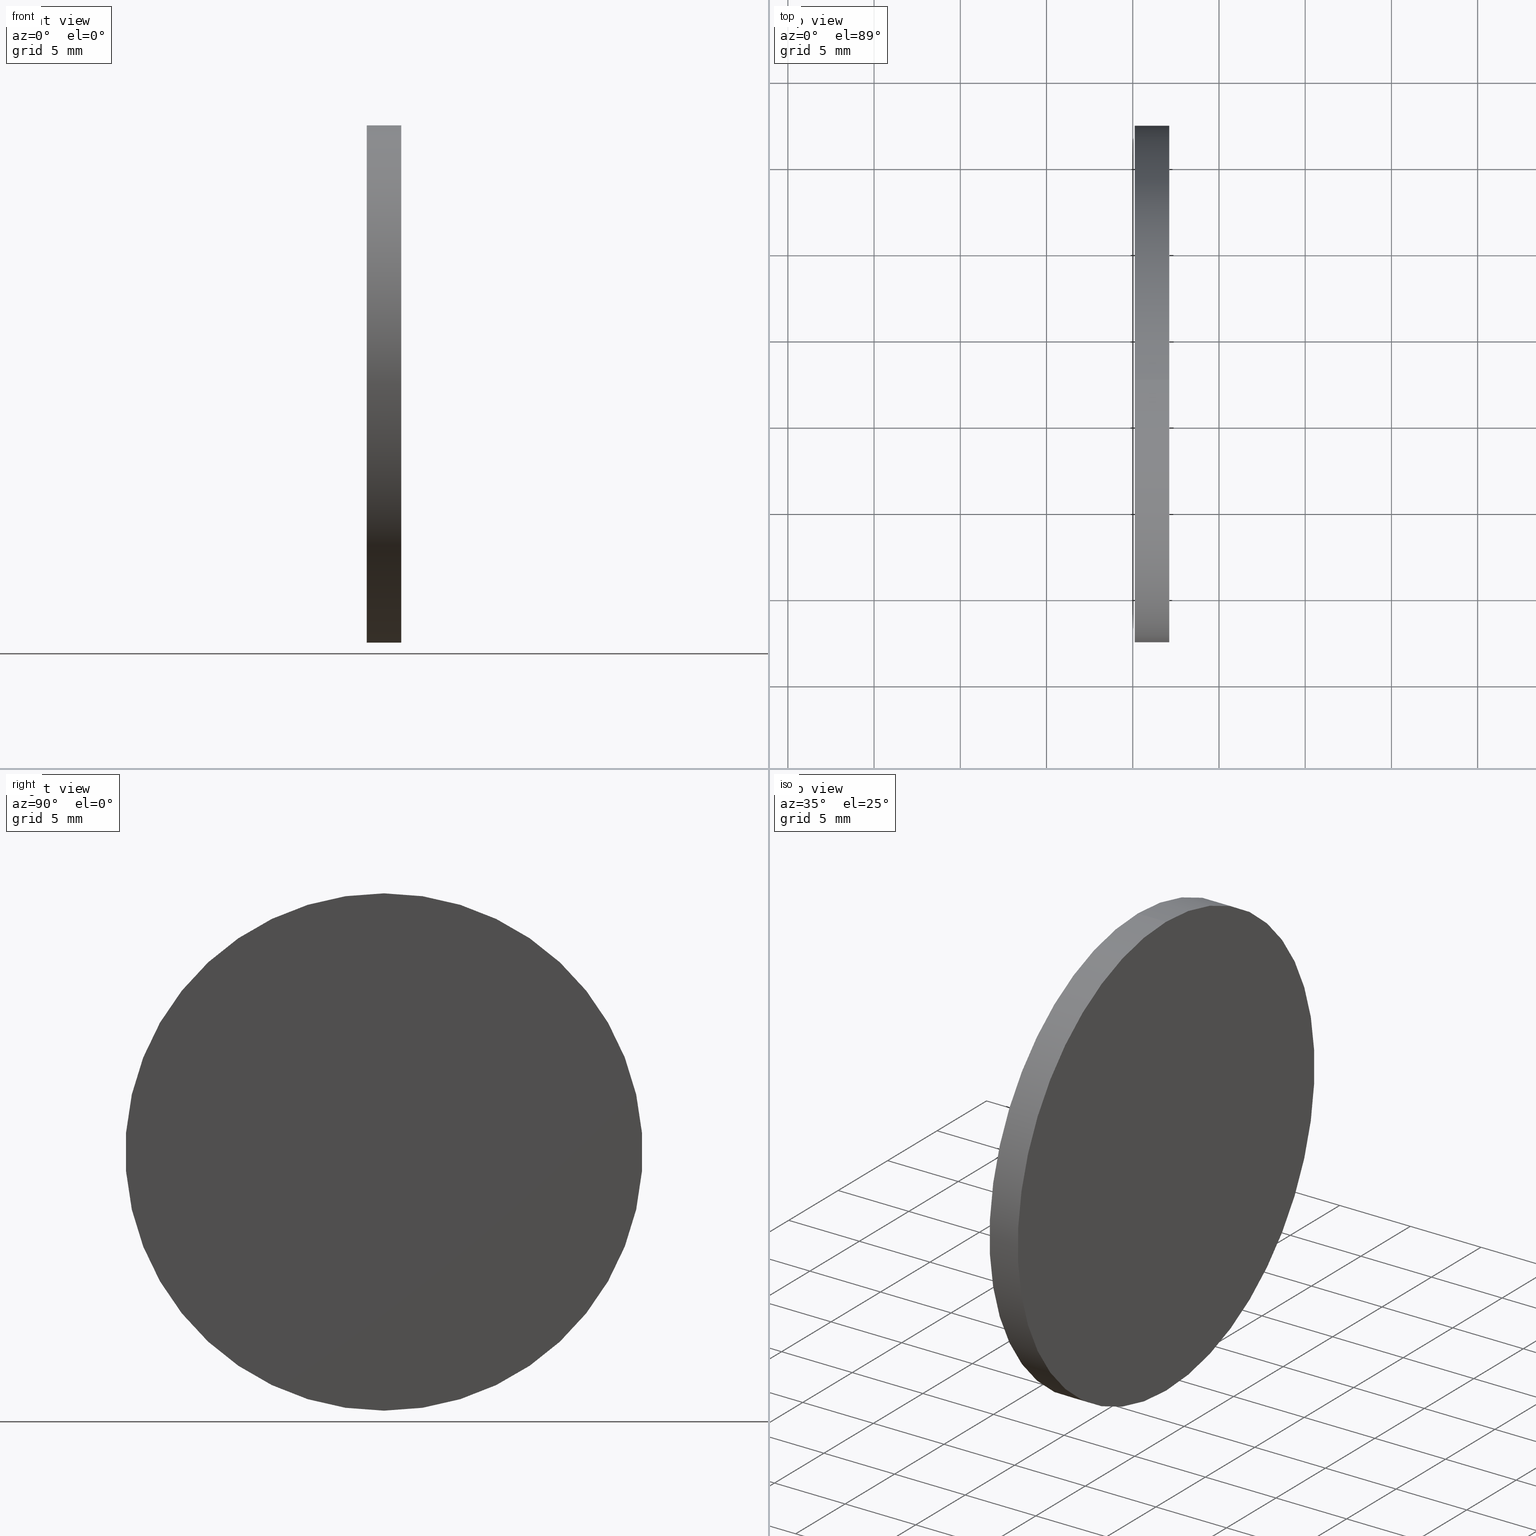
[diagram: canonical four-view strip — front | top / right | iso, engineering-drawing reading convention]
A machine part, canonical four-view strip (front | top / right | iso — engineering-drawing reading convention). The complete STEP part file that produces these views, byte-faithful:
ISO-10303-21;
HEADER;
FILE_DESCRIPTION (( 'STEP AP214' ),
    '1' );
FILE_NAME ('260009.STEP',
    '2019-07-15T03:54:20',
    ( '' ),
    ( '' ),
    'SwSTEP 2.0',
    'SolidWorks 2016',
    '' );
FILE_SCHEMA (( 'AUTOMOTIVE_DESIGN' ));
ENDSEC;

DATA;
#1 = CARTESIAN_POINT ( 'NONE',  ( 0.0000000000000000000, 0.0000000000000000000, 0.0000000000000000000 ) ) ;
#2 = CARTESIAN_POINT ( 'NONE',  ( 260.1163036661670800, 77.29317934901541800, 0.0000000000000000000 ) ) ;
#3 = VERTEX_POINT ( 'NONE', #84 ) ;
#4 = ADVANCED_FACE ( 'NONE', ( #63 ), #40, .T. ) ;
#5 = STYLED_ITEM ( 'NONE', ( #72 ), #107 ) ;
#6 = VECTOR ( 'NONE', #111, 1000.000000000000000 ) ;
#7 = PRESENTATION_LAYER_ASSIGNMENT (  '', '', ( #5 ) ) ;
#8 = PRODUCT_DEFINITION_SHAPE ( 'NONE', 'NONE',  #79 ) ;
#9 = ORIENTED_EDGE ( 'NONE', *, *, #138, .T. ) ;
#10 = MECHANICAL_DESIGN_GEOMETRIC_PRESENTATION_REPRESENTATION (  '', ( #5 ), #132 ) ;
#11 = PLANE ( 'NONE',  #92 ) ;
#12 = SHAPE_DEFINITION_REPRESENTATION ( #8, #136 ) ;
#13 = PLANE ( 'NONE',  #59 ) ;
#14 = CARTESIAN_POINT ( 'NONE',  ( 260.1163036661670800, 77.29317934901541800, -15.00000000000000000 ) ) ;
#15 = COLOUR_RGB ( '',1.000000000000000000, 1.000000000000000000, 1.000000000000000000 ) ;
#16 = PRODUCT_CONTEXT ( 'NONE', #45, 'mechanical' ) ;
#17 = DIRECTION ( 'NONE',  ( 0.0000000000000000000, 0.0000000000000000000, 1.000000000000000000 ) ) ;
#18 = VERTEX_POINT ( 'NONE', #14 ) ;
#19 = EDGE_CURVE ( 'NONE', #3, #18, #116, .T. ) ;
#20 = DIRECTION ( 'NONE',  ( -1.000000000000000000, -0.0000000000000000000, -0.0000000000000000000 ) ) ;
#21 = CARTESIAN_POINT ( 'NONE',  ( 260.1163036661670800, 77.29317934901541800, 0.0000000000000000000 ) ) ;
#22 = DIRECTION ( 'NONE',  ( 1.000000000000000000, 0.0000000000000000000, 0.0000000000000000000 ) ) ;
#23 = FILL_AREA_STYLE_COLOUR ( '', #123 ) ;
#24 = AXIS2_PLACEMENT_3D ( 'NONE', #118, #109, #137 ) ;
#25 = ADVANCED_FACE ( 'NONE', ( #100 ), #13, .F. ) ;
#26 = ORIENTED_EDGE ( 'NONE', *, *, #54, .T. ) ;
#27 = DIRECTION ( 'NONE',  ( 0.0000000000000000000, 0.0000000000000000000, -1.000000000000000000 ) ) ;
#28 = AXIS2_PLACEMENT_3D ( 'NONE', #99, #75, #108 ) ;
#29 = DIRECTION ( 'NONE',  ( 0.0000000000000000000, 0.0000000000000000000, 1.000000000000000000 ) ) ;
#30 = ORIENTED_EDGE ( 'NONE', *, *, #114, .T. ) ;
#31 = CARTESIAN_POINT ( 'NONE',  ( 262.1163036661670300, 92.29317934901541800, 0.0000000000000000000 ) ) ;
#32 =( LENGTH_UNIT ( ) NAMED_UNIT ( * ) SI_UNIT ( .MILLI., .METRE. ) );
#33 = VERTEX_POINT ( 'NONE', #105 ) ;
#34 = CARTESIAN_POINT ( 'NONE',  ( 262.1163036661670300, 77.29317934901541800, 0.0000000000000000000 ) ) ;
#35 =( LENGTH_UNIT ( ) NAMED_UNIT ( * ) SI_UNIT ( .MILLI., .METRE. ) );
#36 = PRODUCT ( '260009', '260009', '', ( #16 ) ) ;
#37 = SURFACE_SIDE_STYLE ('',( #91 ) ) ;
#38 = VECTOR ( 'NONE', #41, 1000.000000000000000 ) ;
#39 = EDGE_CURVE ( 'NONE', #33, #65, #74, .T. ) ;
#40 = CYLINDRICAL_SURFACE ( 'NONE', #51, 15.00000000000000000 ) ;
#41 = DIRECTION ( 'NONE',  ( -1.000000000000000000, -0.0000000000000000000, -0.0000000000000000000 ) ) ;
#42 =( GEOMETRIC_REPRESENTATION_CONTEXT ( 3 ) GLOBAL_UNCERTAINTY_ASSIGNED_CONTEXT ( ( #50 ) ) GLOBAL_UNIT_ASSIGNED_CONTEXT ( ( #35, #61, #78 ) ) REPRESENTATION_CONTEXT ( 'NONE', 'WORKASPACE' ) );
#43 = DIRECTION ( 'NONE',  ( 1.000000000000000000, 0.0000000000000000000, 0.0000000000000000000 ) ) ;
#44 = EDGE_LOOP ( 'NONE', ( #120, #115 ) ) ;
#45 = APPLICATION_CONTEXT ( 'automotive_design' ) ;
#46 = APPLICATION_PROTOCOL_DEFINITION ( 'draft international standard', 'automotive_design', 1998, #122 ) ;
#47 =( GEOMETRIC_REPRESENTATION_CONTEXT ( 3 ) GLOBAL_UNCERTAINTY_ASSIGNED_CONTEXT ( ( #58 ) ) GLOBAL_UNIT_ASSIGNED_CONTEXT ( ( #71, #131, #88 ) ) REPRESENTATION_CONTEXT ( 'NONE', 'WORKASPACE' ) );
#48 = EDGE_LOOP ( 'NONE', ( #139, #95, #117, #135 ) ) ;
#49 = PRODUCT_DEFINITION_FORMATION_WITH_SPECIFIED_SOURCE ( '�κ�', '', #36, .NOT_KNOWN. ) ;
#50 = UNCERTAINTY_MEASURE_WITH_UNIT (LENGTH_MEASURE( 1.000000000000000100E-005 ), #35, 'distance_accuracy_value', 'NONE');
#51 = AXIS2_PLACEMENT_3D ( 'NONE', #119, #76, #29 ) ;
#52 = PRODUCT_DEFINITION_CONTEXT ( 'detailed design', #122, 'design' ) ;
#53 = DIRECTION ( 'NONE',  ( 0.0000000000000000000, 0.0000000000000000000, 1.000000000000000000 ) ) ;
#54 = EDGE_CURVE ( 'NONE', #33, #18, #83, .T. ) ;
#55 = CARTESIAN_POINT ( 'NONE',  ( 254.0008019926160300, 77.29317934901541800, 0.0000000000000000000 ) ) ;
#56 = FILL_AREA_STYLE ('',( #127 ) ) ;
#57 = DIRECTION ( 'NONE',  ( 0.0000000000000000000, 0.0000000000000000000, 1.000000000000000000 ) ) ;
#58 = UNCERTAINTY_MEASURE_WITH_UNIT (LENGTH_MEASURE( 1.000000000000000100E-005 ), #71, 'distance_accuracy_value', 'NONE');
#59 = AXIS2_PLACEMENT_3D ( 'NONE', #21, #43, #27 ) ;
#60 = FACE_OUTER_BOUND ( 'NONE', #44, .T. ) ;
#61 =( NAMED_UNIT ( * ) PLANE_ANGLE_UNIT ( ) SI_UNIT ( $, .RADIAN. ) );
#62 = SURFACE_STYLE_USAGE ( .BOTH. , #37 ) ;
#63 = FACE_OUTER_BOUND ( 'NONE', #48, .T. ) ;
#64 = STYLED_ITEM ( 'NONE', ( #106 ), #136 ) ;
#65 = VERTEX_POINT ( 'NONE', #66 ) ;
#66 = CARTESIAN_POINT ( 'NONE',  ( 262.1163036661670300, 77.29317934901541800, 15.00000000000000000 ) ) ;
#67 = CIRCLE ( 'NONE', #82, 15.00000000000000000 ) ;
#68 = AXIS2_PLACEMENT_3D ( 'NONE', #1, #17, #22 ) ;
#69 = SURFACE_STYLE_FILL_AREA ( #56 ) ;
#70 = DIRECTION ( 'NONE',  ( 0.0000000000000000000, 0.0000000000000000000, 1.000000000000000000 ) ) ;
#71 =( LENGTH_UNIT ( ) NAMED_UNIT ( * ) SI_UNIT ( .MILLI., .METRE. ) );
#72 = PRESENTATION_STYLE_ASSIGNMENT (( #128 ) ) ;
#73 = AXIS2_PLACEMENT_3D ( 'NONE', #55, #20, #53 ) ;
#74 = CIRCLE ( 'NONE', #24, 15.00000000000000000 ) ;
#75 = DIRECTION ( 'NONE',  ( -1.000000000000000000, -0.0000000000000000000, -0.0000000000000000000 ) ) ;
#76 = DIRECTION ( 'NONE',  ( -1.000000000000000000, -0.0000000000000000000, -0.0000000000000000000 ) ) ;
#77 = DIRECTION ( 'NONE',  ( -1.000000000000000000, -0.0000000000000000000, -0.0000000000000000000 ) ) ;
#78 =( NAMED_UNIT ( * ) SI_UNIT ( $, .STERADIAN. ) SOLID_ANGLE_UNIT ( ) );
#79 = PRODUCT_DEFINITION ( 'δ֪', '', #49, #52 ) ;
#80 = UNCERTAINTY_MEASURE_WITH_UNIT (LENGTH_MEASURE( 1.000000000000000100E-005 ), #32, 'distance_accuracy_value', 'NONE');
#81 = FACE_OUTER_BOUND ( 'NONE', #112, .T. ) ;
#82 = AXIS2_PLACEMENT_3D ( 'NONE', #2, #77, #57 ) ;
#83 = LINE ( 'NONE', #87, #38 ) ;
#84 = CARTESIAN_POINT ( 'NONE',  ( 260.1163036661670800, 77.29317934901541800, 15.00000000000000000 ) ) ;
#85 = CYLINDRICAL_SURFACE ( 'NONE', #73, 15.00000000000000000 ) ;
#86 = MECHANICAL_DESIGN_GEOMETRIC_PRESENTATION_REPRESENTATION (  '', ( #64 ), #47 ) ;
#87 = CARTESIAN_POINT ( 'NONE',  ( 254.0008019926160300, 77.29317934901541800, -15.00000000000000000 ) ) ;
#88 =( NAMED_UNIT ( * ) SI_UNIT ( $, .STERADIAN. ) SOLID_ANGLE_UNIT ( ) );
#89 = ADVANCED_FACE ( 'NONE', ( #81 ), #85, .T. ) ;
#90 = CARTESIAN_POINT ( 'NONE',  ( 254.0008019926160300, 77.29317934901541800, 15.00000000000000000 ) ) ;
#91 = SURFACE_STYLE_FILL_AREA ( #113 ) ;
#92 = AXIS2_PLACEMENT_3D ( 'NONE', #31, #126, #97 ) ;
#93 = LINE ( 'NONE', #90, #6 ) ;
#94 = PRODUCT_RELATED_PRODUCT_CATEGORY ( 'part', '', ( #36 ) ) ;
#95 = ORIENTED_EDGE ( 'NONE', *, *, #39, .T. ) ;
#96 = PRESENTATION_LAYER_ASSIGNMENT (  '', '', ( #64 ) ) ;
#97 = DIRECTION ( 'NONE',  ( -0.0000000000000000000, 0.0000000000000000000, 1.000000000000000000 ) ) ;
#98 = SURFACE_SIDE_STYLE ('',( #69 ) ) ;
#99 = CARTESIAN_POINT ( 'NONE',  ( 260.1163036661670800, 77.29317934901541800, 0.0000000000000000000 ) ) ;
#100 = FACE_OUTER_BOUND ( 'NONE', #125, .T. ) ;
#101 = AXIS2_PLACEMENT_3D ( 'NONE', #34, #103, #70 ) ;
#102 = ADVANCED_FACE ( 'NONE', ( #60 ), #11, .F. ) ;
#103 = DIRECTION ( 'NONE',  ( -1.000000000000000000, -0.0000000000000000000, -0.0000000000000000000 ) ) ;
#104 = CLOSED_SHELL ( 'NONE', ( #89, #25, #4, #102 ) ) ;
#105 = CARTESIAN_POINT ( 'NONE',  ( 262.1163036661670300, 77.29317934901541800, -15.00000000000000000 ) ) ;
#106 = PRESENTATION_STYLE_ASSIGNMENT (( #62 ) ) ;
#107 = MANIFOLD_SOLID_BREP ( '��ת1', #104 ) ;
#108 = DIRECTION ( 'NONE',  ( 0.0000000000000000000, 0.0000000000000000000, 1.000000000000000000 ) ) ;
#109 = DIRECTION ( 'NONE',  ( -1.000000000000000000, -0.0000000000000000000, -0.0000000000000000000 ) ) ;
#110 =( NAMED_UNIT ( * ) SI_UNIT ( $, .STERADIAN. ) SOLID_ANGLE_UNIT ( ) );
#111 = DIRECTION ( 'NONE',  ( -1.000000000000000000, -0.0000000000000000000, -0.0000000000000000000 ) ) ;
#112 = EDGE_LOOP ( 'NONE', ( #30, #26, #129, #121 ) ) ;
#113 = FILL_AREA_STYLE ('',( #23 ) ) ;
#114 = EDGE_CURVE ( 'NONE', #65, #33, #134, .T. ) ;
#115 = ORIENTED_EDGE ( 'NONE', *, *, #39, .F. ) ;
#116 = CIRCLE ( 'NONE', #28, 15.00000000000000000 ) ;
#117 = ORIENTED_EDGE ( 'NONE', *, *, #124, .T. ) ;
#118 = CARTESIAN_POINT ( 'NONE',  ( 262.1163036661670300, 77.29317934901541800, 0.0000000000000000000 ) ) ;
#119 = CARTESIAN_POINT ( 'NONE',  ( 254.0008019926160300, 77.29317934901541800, 0.0000000000000000000 ) ) ;
#120 = ORIENTED_EDGE ( 'NONE', *, *, #114, .F. ) ;
#121 = ORIENTED_EDGE ( 'NONE', *, *, #124, .F. ) ;
#122 = APPLICATION_CONTEXT ( 'automotive_design' ) ;
#123 = COLOUR_RGB ( '',1.000000000000000000, 1.000000000000000000, 1.000000000000000000 ) ;
#124 = EDGE_CURVE ( 'NONE', #65, #3, #93, .T. ) ;
#125 = EDGE_LOOP ( 'NONE', ( #133, #9 ) ) ;
#126 = DIRECTION ( 'NONE',  ( -1.000000000000000000, 0.0000000000000000000, -0.0000000000000000000 ) ) ;
#127 = FILL_AREA_STYLE_COLOUR ( '', #15 ) ;
#128 = SURFACE_STYLE_USAGE ( .BOTH. , #98 ) ;
#129 = ORIENTED_EDGE ( 'NONE', *, *, #19, .F. ) ;
#130 = APPLICATION_PROTOCOL_DEFINITION ( 'draft international standard', 'automotive_design', 1998, #45 ) ;
#131 =( NAMED_UNIT ( * ) PLANE_ANGLE_UNIT ( ) SI_UNIT ( $, .RADIAN. ) );
#132 =( GEOMETRIC_REPRESENTATION_CONTEXT ( 3 ) GLOBAL_UNCERTAINTY_ASSIGNED_CONTEXT ( ( #80 ) ) GLOBAL_UNIT_ASSIGNED_CONTEXT ( ( #32, #140, #110 ) ) REPRESENTATION_CONTEXT ( 'NONE', 'WORKASPACE' ) );
#133 = ORIENTED_EDGE ( 'NONE', *, *, #19, .T. ) ;
#134 = CIRCLE ( 'NONE', #101, 15.00000000000000000 ) ;
#135 = ORIENTED_EDGE ( 'NONE', *, *, #138, .F. ) ;
#136 = ADVANCED_BREP_SHAPE_REPRESENTATION ( '260009', ( #107, #68 ), #42 ) ;
#137 = DIRECTION ( 'NONE',  ( 0.0000000000000000000, 0.0000000000000000000, 1.000000000000000000 ) ) ;
#138 = EDGE_CURVE ( 'NONE', #18, #3, #67, .T. ) ;
#139 = ORIENTED_EDGE ( 'NONE', *, *, #54, .F. ) ;
#140 =( NAMED_UNIT ( * ) PLANE_ANGLE_UNIT ( ) SI_UNIT ( $, .RADIAN. ) );
ENDSEC;
END-ISO-10303-21;
